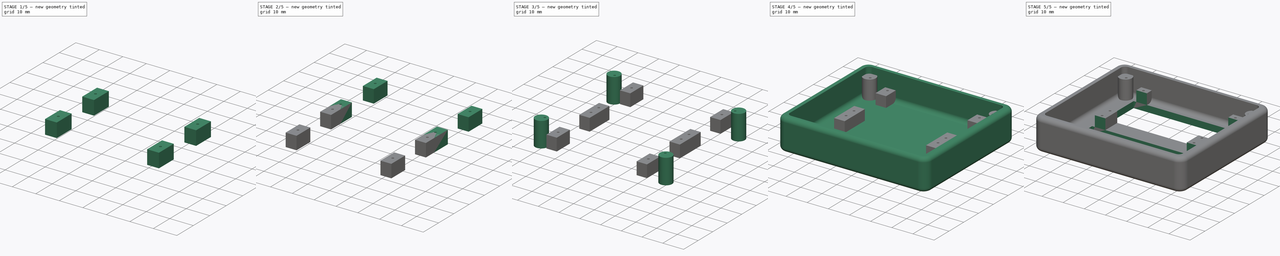
[diagram: build sequence overview — one tinted view per stage of 5, left to right]
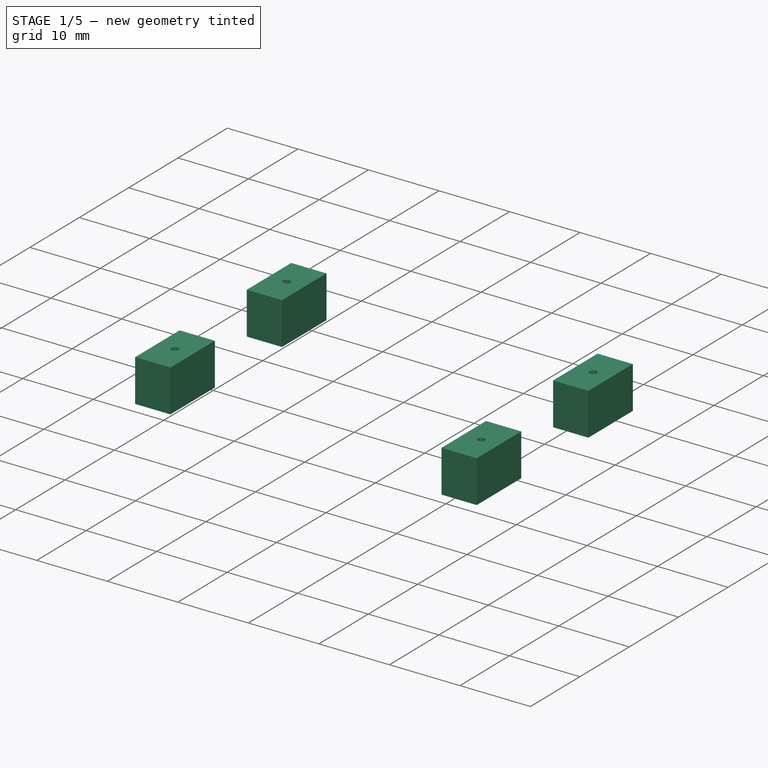
[diagram: stage 1 of 5 — iso view after this stage's code; geometry added in this stage tinted green]
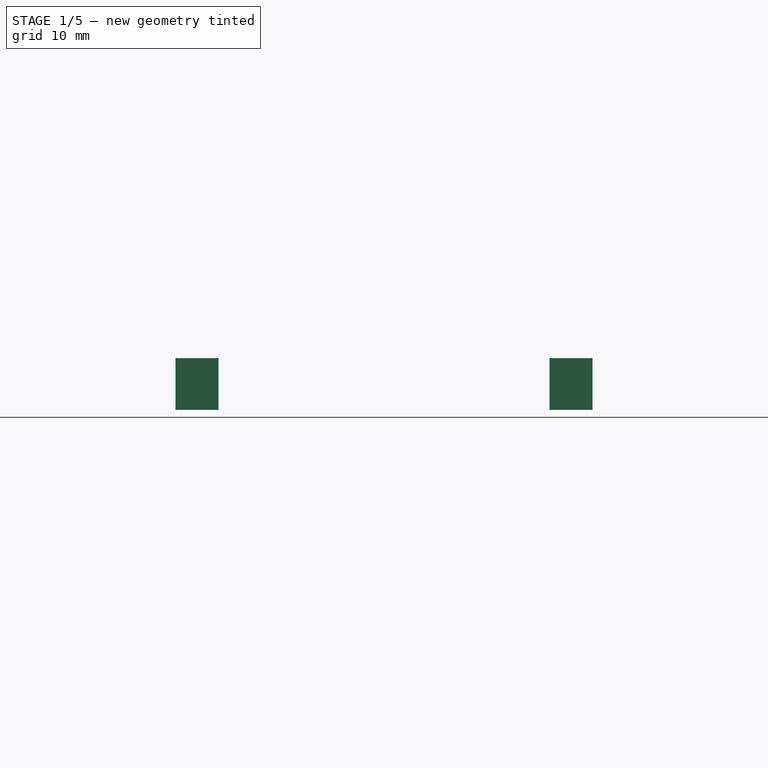
[diagram: stage 1 of 5 — front view after this stage's code; geometry added in this stage tinted green]
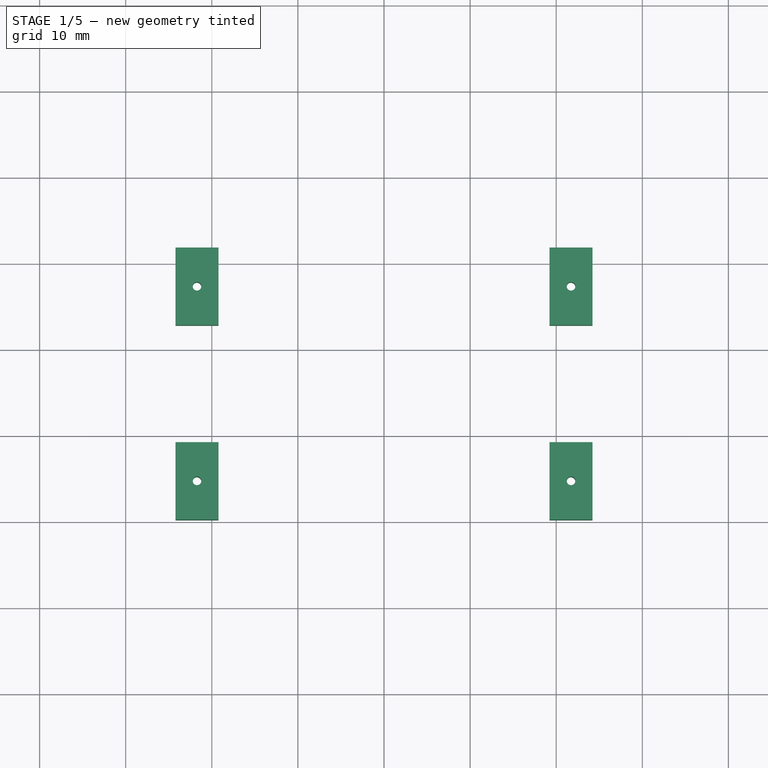
[diagram: stage 1 of 5 — top view after this stage's code; geometry added in this stage tinted green]
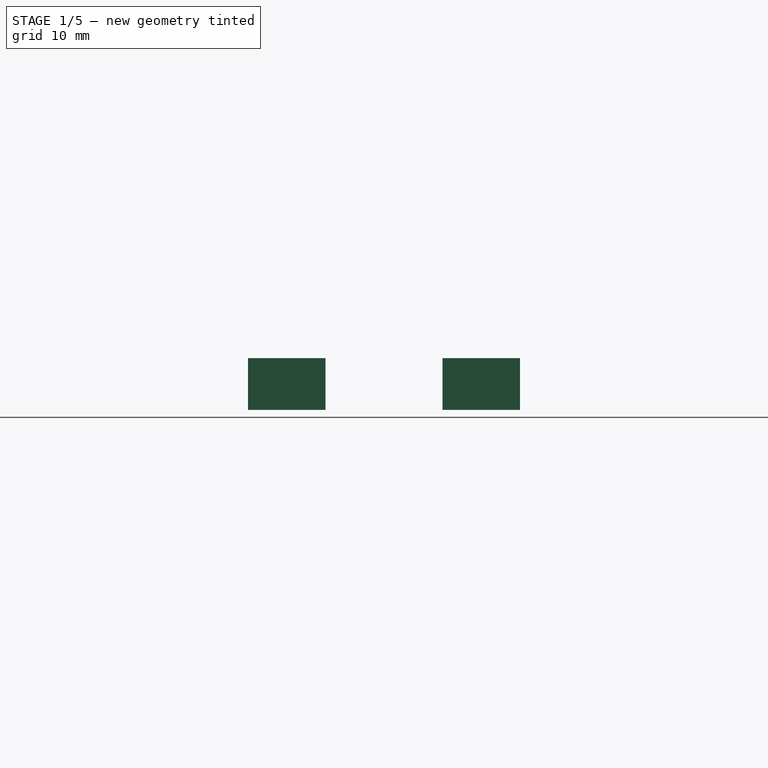
[diagram: stage 1 of 5 — right view after this stage's code; geometry added in this stage tinted green]
FCSTD DOCUMENT  (FreeCAD 0.19R24276 (Git))
Label: enclosurev3
License: All rights reserved
LicenseURL: http://en.wikipedia.org/wiki/All_rights_reserved
objects: Sketcher::SketchObject×12, PartDesign::Pad×12, PartDesign::Body×12, Part::MultiFuse×5, Part::Box×4, Part::Fillet×2, Part::Cut×2, Spreadsheet::Sheet×1
note: 61 computed .brp shape members not serialized (recipe doc carries the construction recipe); baked Part::Feature solids carry a one-line shape summary decoded from their .brp

FEATURE [Sketcher::SketchObject] Sketch015  label="LEDstandoff015"
  FullyConstrained = true
  MapMode = 5
  Support = -> [XY_Plane015]
  expr: Constraints[0] = <<data>>.hole_dia / 2
  expr: Constraints[8] = <<data>>.standoff_dia
  expr: Constraints[11] = <<data>>.case_standoff_dia * 1.5
  sketch-geometry (5):
    g0: Circle CenterX=0 CenterY=0 CenterZ=0 NormalX=0 NormalY=0 NormalZ=1 AngleXU=0 Radius=0.5
    g1: LineSegment StartX=-2.5 StartY=4.5 StartZ=0 EndX=2.5 EndY=4.5 EndZ=0
    g2: LineSegment StartX=2.5 StartY=4.5 StartZ=0 EndX=2.5 EndY=-4.5 EndZ=0
    g3: LineSegment StartX=2.5 StartY=-4.5 StartZ=0 EndX=-2.5 EndY=-4.5 EndZ=0
    g4: LineSegment StartX=-2.5 StartY=-4.5 StartZ=0 EndX=-2.5 EndY=4.5 EndZ=0
  constraints (12):
    c: Radius(g0) = 0.5
    c: Coincident(g-1,g0)
    c: Coincident(g1,g2)
    c: Coincident(g2,g3)
    c: Coincident(g3,g4)
    c: Coincident(g4,g1)
    c: Horizontal(g3)
    c: Vertical(g4)
    c: DistanceX(g3,g2) = 5
    c: Symmetric(g2,g1,g-1)
    c: Symmetric(g1,g1,g-2)
    c: DistanceY(g3,g1) = 9
FEATURE [PartDesign::Pad] Pad015
  Direction = (1,1,1)
  Length = 6
  Length2 = 100
  Profile = -> Sketch015
  Type = 0
  expr: Length = <<data>>.standoff_height
FEATURE [PartDesign::Body] Body015  label="Standoff015"
  Group = -> [Sketch015,Pad015]
  Origin = -> Origin015
  Placement = pos=(-21.72,-11.3,0) rot=(0,0,1;0rad)
  Tip = -> Pad015
FEATURE [Sketcher::SketchObject] Sketch016  label="LEDstandoff016"
  FullyConstrained = true
  MapMode = 5
  Support = -> [XY_Plane018]
  expr: Constraints[11] = <<data>>.case_standoff_dia * 1.5
  expr: Constraints[8] = <<data>>.standoff_dia
  expr: Constraints[0] = <<data>>.hole_dia / 2
  sketch-geometry (5):
    g0: Circle CenterX=0 CenterY=0 CenterZ=0 NormalX=0 NormalY=0 NormalZ=1 AngleXU=0 Radius=0.5
    g1: LineSegment StartX=-2.5 StartY=4.5 StartZ=0 EndX=2.5 EndY=4.5 EndZ=0
    g2: LineSegment StartX=2.5 StartY=4.5 StartZ=0 EndX=2.5 EndY=-4.5 EndZ=0
    g3: LineSegment StartX=2.5 StartY=-4.5 StartZ=0 EndX=-2.5 EndY=-4.5 EndZ=0
    g4: LineSegment StartX=-2.5 StartY=-4.5 StartZ=0 EndX=-2.5 EndY=4.5 EndZ=0
  constraints (12):
    c: Radius(g0) = 0.5
    c: Coincident(g-1,g0)
    c: Coincident(g1,g2)
    c: Coincident(g2,g3)
    c: Coincident(g3,g4)
    c: Coincident(g4,g1)
    c: Horizontal(g3)
    c: Vertical(g4)
    c: DistanceX(g3,g2) = 5
    c: Symmetric(g2,g1,g-1)
    c: Symmetric(g1,g1,g-2)
    c: DistanceY(g3,g1) = 9
FEATURE [Sketcher::SketchObject] Sketch017  label="LEDstandoff017"
  FullyConstrained = true
  MapMode = 5
  Support = -> [XY_Plane016]
  expr: Constraints[11] = <<data>>.case_standoff_dia * 1.5
  expr: Constraints[8] = <<data>>.standoff_dia
  expr: Constraints[0] = <<data>>.hole_dia / 2
  sketch-geometry (5):
    g0: Circle CenterX=0 CenterY=0 CenterZ=0 NormalX=0 NormalY=0 NormalZ=1 AngleXU=0 Radius=0.5
    g1: LineSegment StartX=-2.5 StartY=4.5 StartZ=0 EndX=2.5 EndY=4.5 EndZ=0
    g2: LineSegment StartX=2.5 StartY=4.5 StartZ=0 EndX=2.5 EndY=-4.5 EndZ=0
    g3: LineSegment StartX=2.5 StartY=-4.5 StartZ=0 EndX=-2.5 EndY=-4.5 EndZ=0
    g4: LineSegment StartX=-2.5 StartY=-4.5 StartZ=0 EndX=-2.5 EndY=4.5 EndZ=0
  constraints (12):
    c: Radius(g0) = 0.5
    c: Coincident(g-1,g0)
    c: Coincident(g1,g2)
    c: Coincident(g2,g3)
    c: Coincident(g3,g4)
    c: Coincident(g4,g1)
    c: Horizontal(g3)
    c: Vertical(g4)
    c: DistanceX(g3,g2) = 5
    c: Symmetric(g2,g1,g-1)
    c: Symmetric(g1,g1,g-2)
    c: DistanceY(g3,g1) = 9
FEATURE [PartDesign::Pad] Pad017
  Direction = (1,1,1)
  Length = 6
  Length2 = 100
  Profile = -> Sketch017
  Type = 0
  expr: Length = <<data>>.standoff_height
FEATURE [PartDesign::Body] Body017  label="Standoff017"
  Group = -> [Sketch017,Pad017]
  Origin = -> Origin018
  Placement = pos=(21.72,-11.3,0) rot=(0,0,1;0rad)
  Tip = -> Pad017
FEATURE [PartDesign::Pad] Pad018
  Direction = (1,1,1)
  Length = 6
  Length2 = 100
  Profile = -> Sketch016
  Type = 0
  expr: Length = <<data>>.standoff_height
FEATURE [PartDesign::Body] Body016  label="Standoff016"
  Group = -> [Sketch016,Pad018]
  Origin = -> Origin017
  Placement = pos=(-21.72,11.3,0) rot=(0,0,1;0rad)
  Tip = -> Pad018
FEATURE [Sketcher::SketchObject] Sketch018  label="LEDstandoff018"
  FullyConstrained = true
  MapMode = 5
  Support = -> [XY_Plane017]
  expr: Constraints[11] = <<data>>.case_standoff_dia * 1.5
  expr: Constraints[8] = <<data>>.standoff_dia
  expr: Constraints[0] = <<data>>.hole_dia / 2
  sketch-geometry (5):
    g0: Circle CenterX=0 CenterY=0 CenterZ=0 NormalX=0 NormalY=0 NormalZ=1 AngleXU=0 Radius=0.5
    g1: LineSegment StartX=-2.5 StartY=4.5 StartZ=0 EndX=2.5 EndY=4.5 EndZ=0
    g2: LineSegment StartX=2.5 StartY=4.5 StartZ=0 EndX=2.5 EndY=-4.5 EndZ=0
    g3: LineSegment StartX=2.5 StartY=-4.5 StartZ=0 EndX=-2.5 EndY=-4.5 EndZ=0
    g4: LineSegment StartX=-2.5 StartY=-4.5 StartZ=0 EndX=-2.5 EndY=4.5 EndZ=0
  constraints (12):
    c: Radius(g0) = 0.5
    c: Coincident(g-1,g0)
    c: Coincident(g1,g2)
    c: Coincident(g2,g3)
    c: Coincident(g3,g4)
    c: Coincident(g4,g1)
    c: Horizontal(g3)
    c: Vertical(g4)
    c: DistanceX(g3,g2) = 5
    c: Symmetric(g2,g1,g-1)
    c: Symmetric(g1,g1,g-2)
    c: DistanceY(g3,g1) = 9
FEATURE [PartDesign::Pad] Pad016
  Direction = (1,1,1)
  Length = 6
  Length2 = 100
  Profile = -> Sketch018
  Type = 0
  expr: Length = <<data>>.standoff_height
FEATURE [PartDesign::Body] Body018  label="Standoff018"
  Group = -> [Sketch018,Pad016]
  Origin = -> Origin016
  Placement = pos=(21.72,11.3,0) rot=(0,0,1;0rad)
  Tip = -> Pad016
FEATURE [Part::MultiFuse] Fusion006  label="StandoffLower"
  Placement = pos=(0,-13.97,2) rot=(0,0,1;0rad)
  Shapes = -> [Body015,Body017,Body016,Body018]
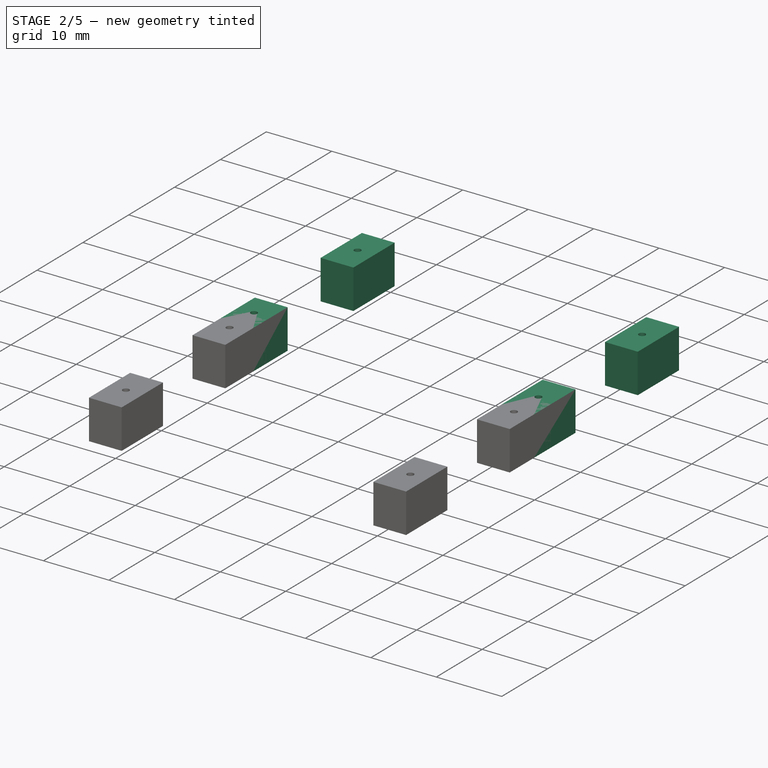
[diagram: stage 2 of 5 — iso view after this stage's code; geometry added in this stage tinted green]
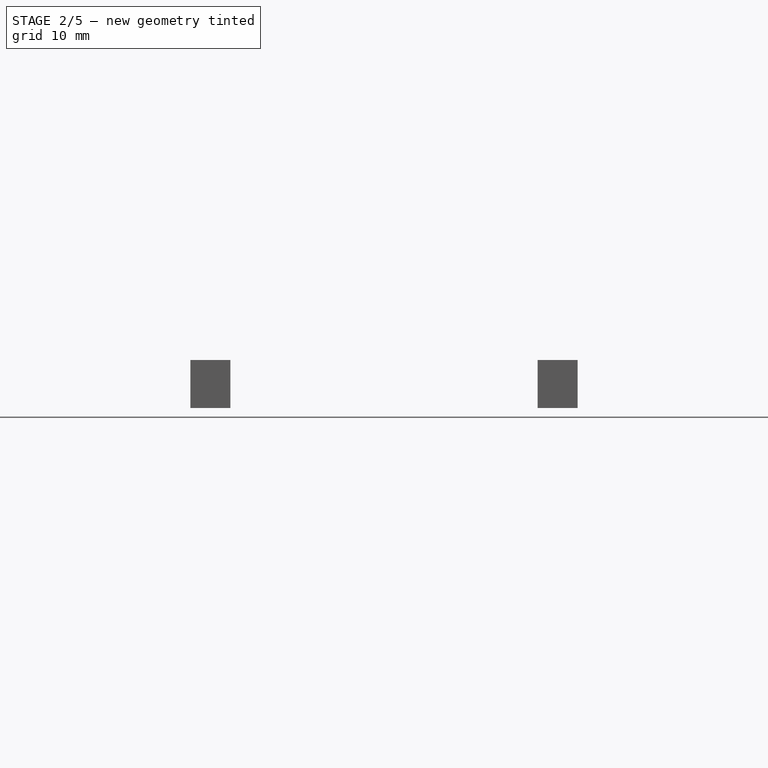
[diagram: stage 2 of 5 — front view after this stage's code; geometry added in this stage tinted green]
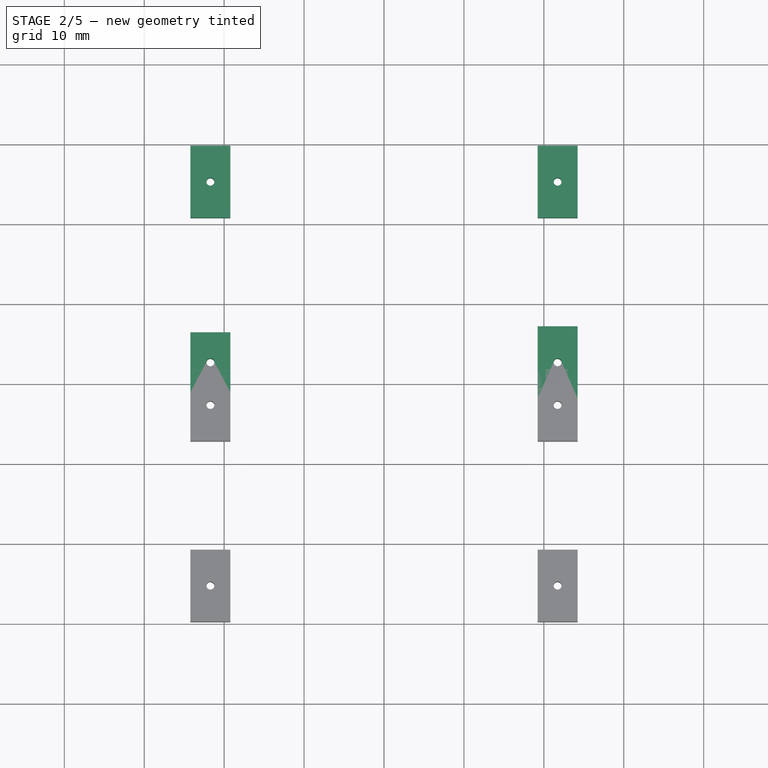
[diagram: stage 2 of 5 — top view after this stage's code; geometry added in this stage tinted green]
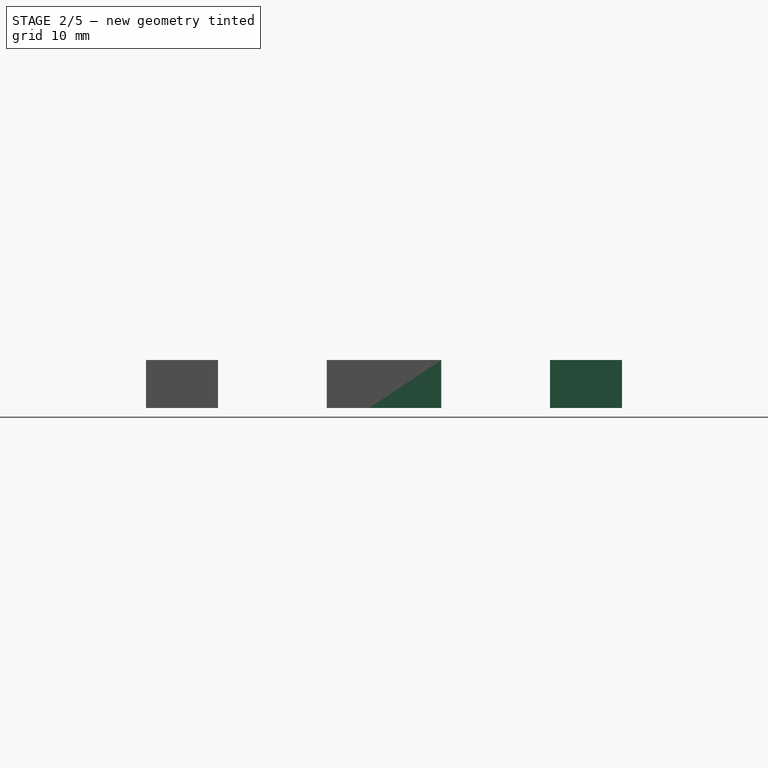
[diagram: stage 2 of 5 — right view after this stage's code; geometry added in this stage tinted green]
FEATURE [Sketcher::SketchObject] Sketch  label="LEDstandoff"
  FullyConstrained = true
  MapMode = 5
  Support = -> [XY_Plane]
  expr: Constraints[11] = <<data>>.case_standoff_dia * 1.25
  expr: Constraints[8] = <<data>>.standoff_dia
  expr: Constraints[0] = <<data>>.hole_dia / 2
  sketch-geometry (5):
    g0: Circle CenterX=0 CenterY=0 CenterZ=0 NormalX=0 NormalY=0 NormalZ=1 AngleXU=0 Radius=0.5
    g1: LineSegment StartX=-2.5 StartY=3.75 StartZ=0 EndX=2.5 EndY=3.75 EndZ=0
    g2: LineSegment StartX=2.5 StartY=3.75 StartZ=0 EndX=2.5 EndY=-3.75 EndZ=0
    g3: LineSegment StartX=2.5 StartY=-3.75 StartZ=0 EndX=-2.5 EndY=-3.75 EndZ=0
    g4: LineSegment StartX=-2.5 StartY=-3.75 StartZ=0 EndX=-2.5 EndY=3.75 EndZ=0
  constraints (12):
    c: Radius(g0) = 0.5
    c: Coincident(g-1,g0)
    c: Coincident(g1,g2)
    c: Coincident(g2,g3)
    c: Coincident(g3,g4)
    c: Coincident(g4,g1)
    c: Horizontal(g3)
    c: Vertical(g4)
    c: DistanceX(g3,g2) = 5
    c: Symmetric(g2,g1,g-1)
    c: Symmetric(g1,g1,g-2)
    c: DistanceY(g3,g1) = 7.5
FEATURE [Spreadsheet::Sheet] Spreadsheet  label="data"
  cells = A4=hole_dia; B4(hole_dia)==1mm; A5=standoff_dia; B5(standoff_dia)==5mm; A6=standoff_height; B6(standoff_height)==6mm; A7=case_standoff_dia; B7(case_standoff_dia)==6mm; A8=wall_thickness; B8(wall_thickness)==3mm; A9=case_thickness; B9(case_thickness)==15mm; A10=case_inner_width; B10(case_inner_width)==2.55in; A11=case_inner_height; B11(case_inner_height)==2.15in; A12=offset; B12(offset)==1mm
FEATURE [PartDesign::Pad] Pad
  Direction = (1,1,1)
  Length = 6
  Length2 = 100
  Profile = -> Sketch
  Type = 0
  expr: Length = <<data>>.standoff_height
FEATURE [Sketcher::SketchObject] Sketch012  label="LEDstandoff012"
  FullyConstrained = true
  MapMode = 5
  Support = -> [XY_Plane012]
  expr: Constraints[0] = <<data>>.hole_dia / 2
  expr: Constraints[8] = <<data>>.standoff_dia
  expr: Constraints[11] = <<data>>.case_standoff_dia * 1.5
  sketch-geometry (5):
    g0: Circle CenterX=0 CenterY=0 CenterZ=0 NormalX=0 NormalY=0 NormalZ=1 AngleXU=0 Radius=0.5
    g1: LineSegment StartX=-2.5 StartY=4.5 StartZ=0 EndX=2.5 EndY=4.5 EndZ=0
    g2: LineSegment StartX=2.5 StartY=4.5 StartZ=0 EndX=2.5 EndY=-4.5 EndZ=0
    g3: LineSegment StartX=2.5 StartY=-4.5 StartZ=0 EndX=-2.5 EndY=-4.5 EndZ=0
    g4: LineSegment StartX=-2.5 StartY=-4.5 StartZ=0 EndX=-2.5 EndY=4.5 EndZ=0
  constraints (12):
    c: Radius(g0) = 0.5
    c: Coincident(g-1,g0)
    c: Coincident(g1,g2)
    c: Coincident(g2,g3)
    c: Coincident(g3,g4)
    c: Coincident(g4,g1)
    c: Horizontal(g3)
    c: Vertical(g4)
    c: DistanceX(g3,g2) = 5
    c: Symmetric(g2,g1,g-1)
    c: Symmetric(g1,g1,g-2)
    c: DistanceY(g3,g1) = 9
FEATURE [PartDesign::Pad] Pad012
  Direction = (1,1,1)
  Length = 6
  Length2 = 100
  Profile = -> Sketch012
  Type = 0
  expr: Length = <<data>>.standoff_height
FEATURE [PartDesign::Body] Body012  label="Standoff012"
  Group = -> [Sketch012,Pad012]
  Origin = -> Origin012
  Placement = pos=(21.72,-11.3,0) rot=(0,0,1;0rad)
  Tip = -> Pad012
FEATURE [Sketcher::SketchObject] Sketch013  label="LEDstandoff013"
  FullyConstrained = true
  MapMode = 5
  Support = -> [XY_Plane013]
  expr: Constraints[0] = <<data>>.hole_dia / 2
  expr: Constraints[8] = <<data>>.standoff_dia
  expr: Constraints[11] = <<data>>.case_standoff_dia * 1.5
  sketch-geometry (5):
    g0: Circle CenterX=0 CenterY=0 CenterZ=0 NormalX=0 NormalY=0 NormalZ=1 AngleXU=0 Radius=0.5
    g1: LineSegment StartX=-2.5 StartY=4.5 StartZ=0 EndX=2.5 EndY=4.5 EndZ=0
    g2: LineSegment StartX=2.5 StartY=4.5 StartZ=0 EndX=2.5 EndY=-4.5 EndZ=0
    g3: LineSegment StartX=2.5 StartY=-4.5 StartZ=0 EndX=-2.5 EndY=-4.5 EndZ=0
    g4: LineSegment StartX=-2.5 StartY=-4.5 StartZ=0 EndX=-2.5 EndY=4.5 EndZ=0
  constraints (12):
    c: Radius(g0) = 0.5
    c: Coincident(g-1,g0)
    c: Coincident(g1,g2)
    c: Coincident(g2,g3)
    c: Coincident(g3,g4)
    c: Coincident(g4,g1)
    c: Horizontal(g3)
    c: Vertical(g4)
    c: DistanceX(g3,g2) = 5
    c: Symmetric(g2,g1,g-1)
    c: Symmetric(g1,g1,g-2)
    c: DistanceY(g3,g1) = 9
FEATURE [PartDesign::Pad] Pad013
  Direction = (1,1,1)
  Length = 6
  Length2 = 100
  Profile = -> Sketch013
  Type = 0
  expr: Length = <<data>>.standoff_height
FEATURE [PartDesign::Body] Body013  label="Standoff013"
  Group = -> [Sketch013,Pad013]
  Origin = -> Origin013
  Placement = pos=(-21.72,11.3,0) rot=(0,0,1;0rad)
  Tip = -> Pad013
FEATURE [Sketcher::SketchObject] Sketch014  label="LEDstandoff014"
  FullyConstrained = true
  MapMode = 5
  Support = -> [XY_Plane014]
  expr: Constraints[0] = <<data>>.hole_dia / 2
  expr: Constraints[8] = <<data>>.standoff_dia
  expr: Constraints[11] = <<data>>.case_standoff_dia * 1.5
  sketch-geometry (5):
    g0: Circle CenterX=0 CenterY=0 CenterZ=0 NormalX=0 NormalY=0 NormalZ=1 AngleXU=0 Radius=0.5
    g1: LineSegment StartX=-2.5 StartY=4.5 StartZ=0 EndX=2.5 EndY=4.5 EndZ=0
    g2: LineSegment StartX=2.5 StartY=4.5 StartZ=0 EndX=2.5 EndY=-4.5 EndZ=0
    g3: LineSegment StartX=2.5 StartY=-4.5 StartZ=0 EndX=-2.5 EndY=-4.5 EndZ=0
    g4: LineSegment StartX=-2.5 StartY=-4.5 StartZ=0 EndX=-2.5 EndY=4.5 EndZ=0
  constraints (12):
    c: Radius(g0) = 0.5
    c: Coincident(g-1,g0)
    c: Coincident(g1,g2)
    c: Coincident(g2,g3)
    c: Coincident(g3,g4)
    c: Coincident(g4,g1)
    c: Horizontal(g3)
    c: Vertical(g4)
    c: DistanceX(g3,g2) = 5
    c: Symmetric(g2,g1,g-1)
    c: Symmetric(g1,g1,g-2)
    c: DistanceY(g3,g1) = 9
FEATURE [PartDesign::Pad] Pad014
  Direction = (1,1,1)
  Length = 6
  Length2 = 100
  Profile = -> Sketch014
  Type = 0
  expr: Length = <<data>>.standoff_height
FEATURE [PartDesign::Body] Body014  label="Standoff014"
  Group = -> [Sketch014,Pad014]
  Origin = -> Origin014
  Placement = pos=(21.72,11.3,0) rot=(0,0,1;0rad)
  Tip = -> Pad014
FEATURE [Part::MultiFuse] Fusion  label="StandoffUpper"
  Placement = pos=(0,13.97,2) rot=(0,0,1;0rad)
  Shapes = -> [Body,Body012,Body013,Body014]
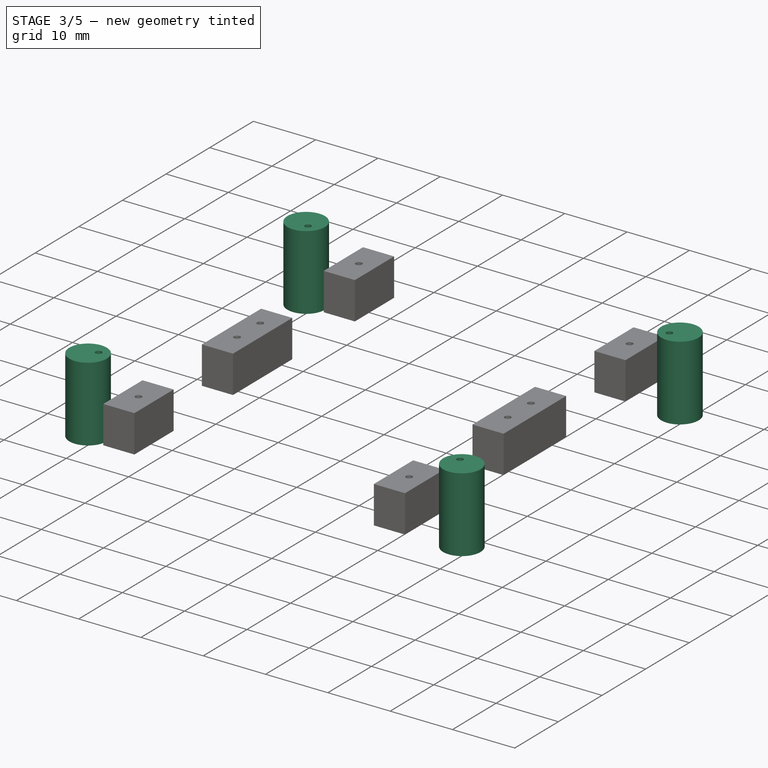
[diagram: stage 3 of 5 — iso view after this stage's code; geometry added in this stage tinted green]
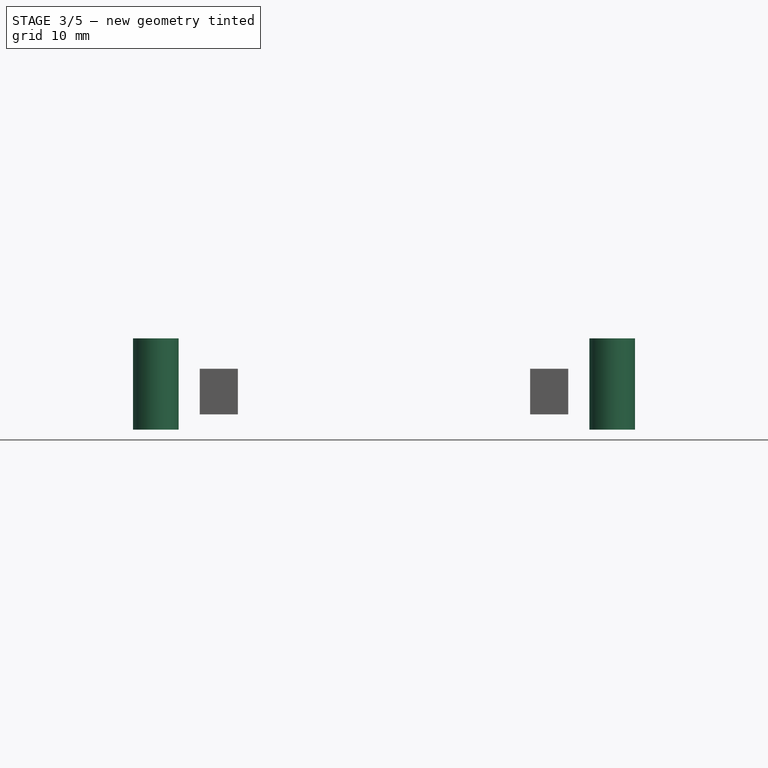
[diagram: stage 3 of 5 — front view after this stage's code; geometry added in this stage tinted green]
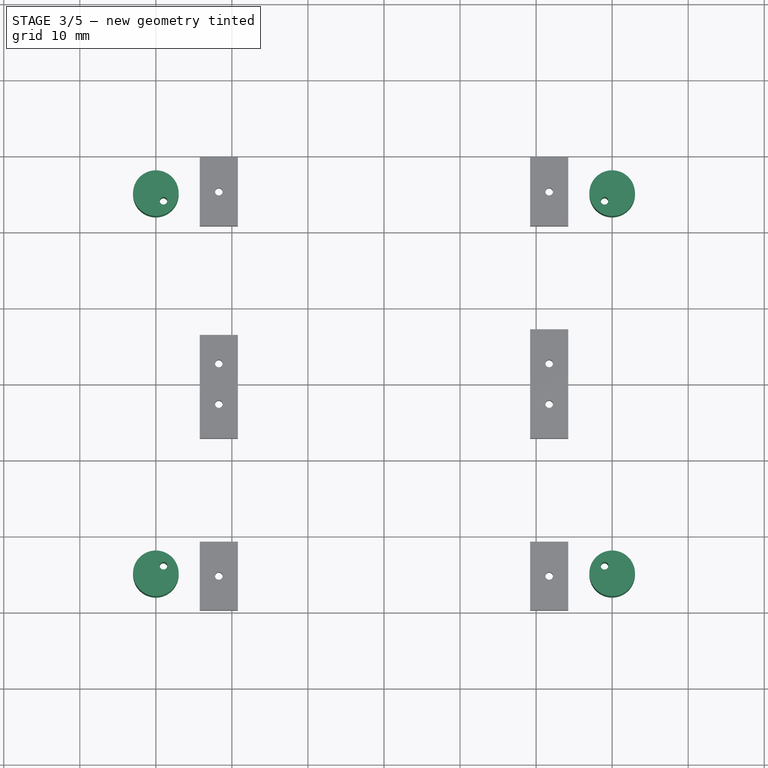
[diagram: stage 3 of 5 — top view after this stage's code; geometry added in this stage tinted green]
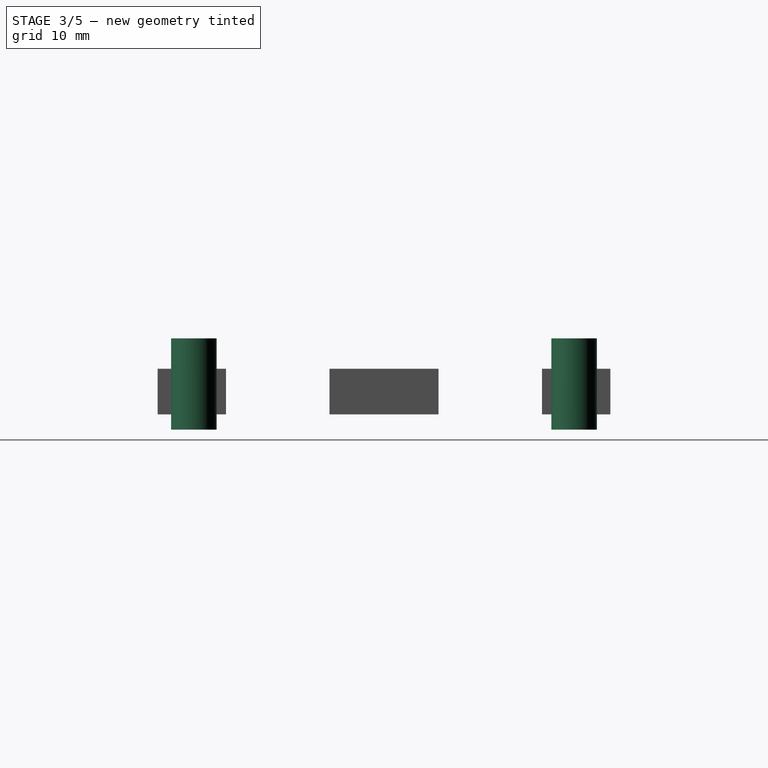
[diagram: stage 3 of 5 — right view after this stage's code; geometry added in this stage tinted green]
FEATURE [Sketcher::SketchObject] Sketch008  label="LEDstandoff008"
  FullyConstrained = true
  MapMode = 5
  Support = -> [XY_Plane008]
  expr: Constraints[4] = <<data>>.offset
  expr: Constraints[3] = <<data>>.offset
  expr: Constraints[0] = <<data>>.hole_dia / 2
  expr: Constraints[1] = <<data>>.case_standoff_dia / 2
  sketch-geometry (2):
    g0: Circle CenterX=1 CenterY=1 CenterZ=0 NormalX=0 NormalY=0 NormalZ=1 AngleXU=0 Radius=0.5
    g1: Circle CenterX=0 CenterY=0 CenterZ=0 NormalX=0 NormalY=0 NormalZ=1 AngleXU=0 Radius=3
  constraints (5):
    c: Radius(g0) = 0.5
    c: Radius(g1) = 3
    c: Coincident(g-1,g1)
    c: DistanceX(g1,g0) = 1
    c: DistanceY(g1,g0) = 1
FEATURE [PartDesign::Pad] Pad008
  Direction = (1,1,1)
  Length = 12
  Length2 = 100
  Profile = -> Sketch008
  Type = 0
  expr: Length = <<data>>.case_thickness - <<data>>.wall_thickness
FEATURE [Sketcher::SketchObject] Sketch009  label="LEDstandoff009"
  FullyConstrained = true
  MapMode = 5
  Support = -> [XY_Plane009]
  expr: Constraints[4] = <<data>>.offset
  expr: Constraints[3] = <<data>>.offset
  expr: Constraints[1] = <<data>>.case_standoff_dia / 2
  expr: Constraints[0] = <<data>>.hole_dia / 2
  sketch-geometry (2):
    g0: Circle CenterX=-1 CenterY=1 CenterZ=0 NormalX=0 NormalY=0 NormalZ=1 AngleXU=0 Radius=0.5
    g1: Circle CenterX=0 CenterY=0 CenterZ=0 NormalX=0 NormalY=0 NormalZ=1 AngleXU=0 Radius=3
  constraints (5):
    c: Radius(g0) = 0.5
    c: Radius(g1) = 3
    c: Coincident(g1,g-1)
    c: DistanceY(g1,g0) = 1
    c: DistanceX(g0,g1) = 1
FEATURE [PartDesign::Pad] Pad009
  Direction = (1,1,1)
  Length = 12
  Length2 = 100
  Profile = -> Sketch009
  Type = 0
  expr: Length = <<data>>.case_thickness - <<data>>.wall_thickness
FEATURE [PartDesign::Body] Body009  label="Standoff009"
  Group = -> [Sketch009,Pad009]
  Origin = -> Origin009
  Placement = pos=(30,-25,0) rot=(0,0,1;0rad)
  Tip = -> Pad009
FEATURE [Sketcher::SketchObject] Sketch010  label="LEDstandoff010"
  FullyConstrained = true
  MapMode = 5
  Support = -> [XY_Plane010]
  expr: Constraints[4] = <<data>>.offset
  expr: Constraints[3] = <<data>>.offset
  expr: Constraints[1] = <<data>>.case_standoff_dia / 2
  expr: Constraints[0] = <<data>>.hole_dia / 2
  sketch-geometry (2):
    g0: Circle CenterX=1 CenterY=-1 CenterZ=0 NormalX=0 NormalY=0 NormalZ=1 AngleXU=0 Radius=0.5
    g1: Circle CenterX=0 CenterY=0 CenterZ=0 NormalX=0 NormalY=0 NormalZ=1 AngleXU=0 Radius=3
  constraints (5):
    c: Radius(g0) = 0.5
    c: Radius(g1) = 3
    c: Coincident(g1,g-1)
    c: DistanceY(g0,g1) = 1
    c: DistanceX(g1,g0) = 1
FEATURE [PartDesign::Pad] Pad010
  Direction = (1,1,1)
  Length = 12
  Length2 = 100
  Profile = -> Sketch010
  Type = 0
  expr: Length = <<data>>.case_thickness - <<data>>.wall_thickness
FEATURE [PartDesign::Body] Body010  label="Standoff010"
  Group = -> [Sketch010,Pad010]
  Origin = -> Origin010
  Placement = pos=(-30,25,0) rot=(0,0,1;0rad)
  Tip = -> Pad010
FEATURE [Sketcher::SketchObject] Sketch011  label="LEDstandoff011"
  FullyConstrained = true
  MapMode = 5
  Support = -> [XY_Plane011]
  expr: Constraints[4] = <<data>>.offset
  expr: Constraints[3] = <<data>>.offset
  expr: Constraints[1] = <<data>>.case_standoff_dia / 2
  expr: Constraints[0] = <<data>>.hole_dia / 2
  sketch-geometry (2):
    g0: Circle CenterX=1 CenterY=1 CenterZ=0 NormalX=0 NormalY=0 NormalZ=1 AngleXU=0 Radius=0.5
    g1: Circle CenterX=0 CenterY=0 CenterZ=0 NormalX=0 NormalY=0 NormalZ=1 AngleXU=0 Radius=3
  constraints (5):
    c: Radius(g0) = 0.5
    c: Radius(g1) = 3
    c: Coincident(g-1,g1)
    c: DistanceX(g1,g0) = 1
    c: DistanceY(g0) = 1
FEATURE [PartDesign::Pad] Pad011
  Direction = (1,1,1)
  Length = 12
  Length2 = 100
  Profile = -> Sketch011
  Type = 0
  expr: Length = <<data>>.case_thickness - <<data>>.wall_thickness
FEATURE [PartDesign::Body] Body011  label="Standoff011"
  Group = -> [Sketch011,Pad011]
  Origin = -> Origin011
  Placement = pos=(30,25,0) rot=(0,0,1;3.14159rad)
  Tip = -> Pad011
FEATURE [Part::MultiFuse] Fusion005  label="CoverStandoffs"
  Shapes = -> [Body011,Body010,Body009,Body008]
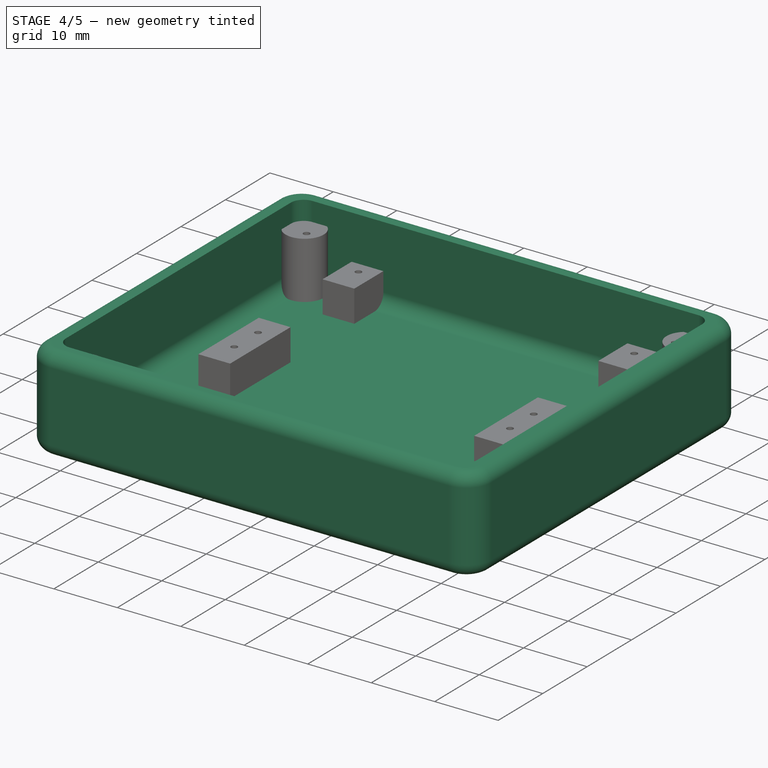
[diagram: stage 4 of 5 — iso view after this stage's code; geometry added in this stage tinted green]
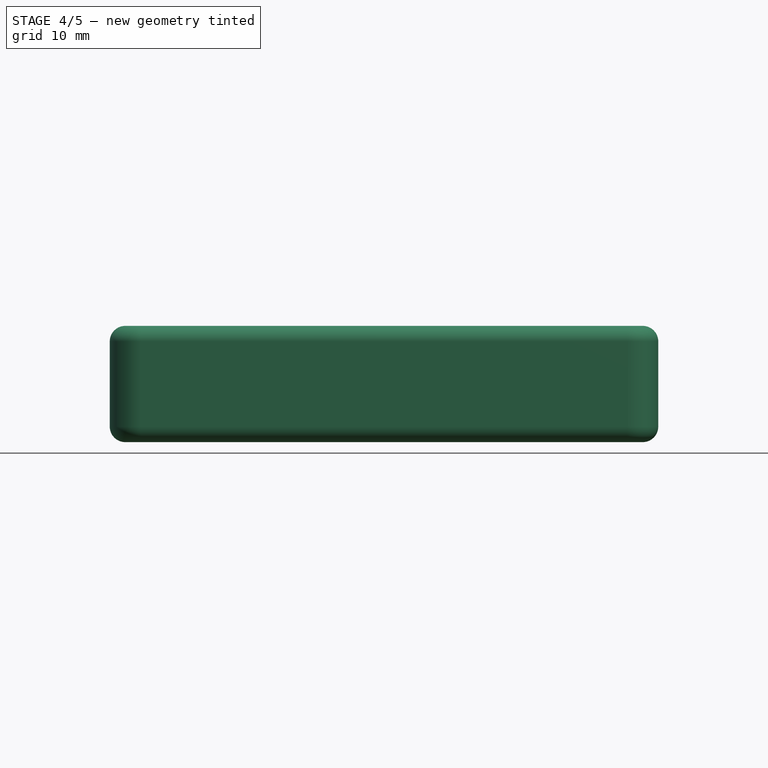
[diagram: stage 4 of 5 — front view after this stage's code; geometry added in this stage tinted green]
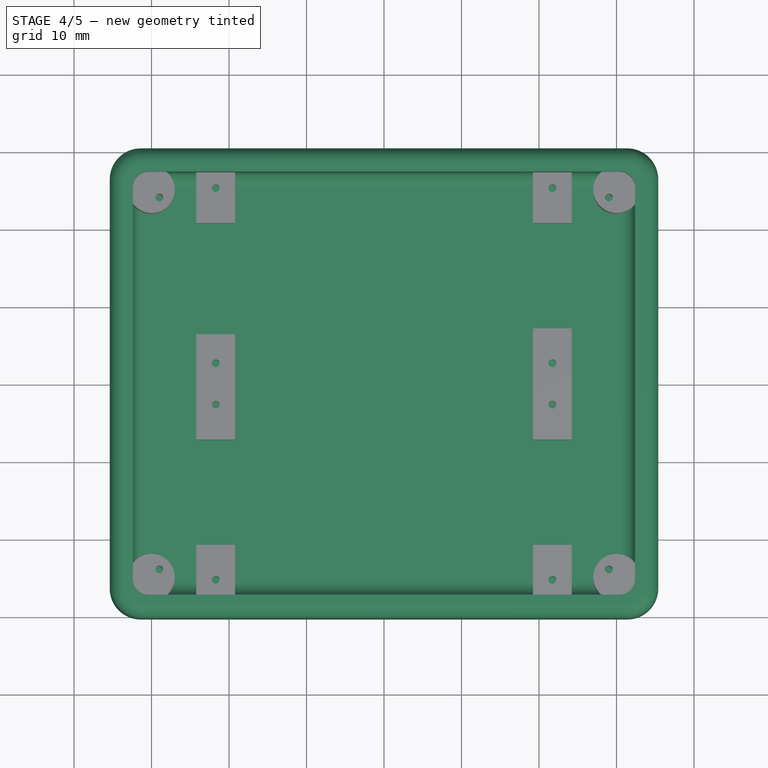
[diagram: stage 4 of 5 — top view after this stage's code; geometry added in this stage tinted green]
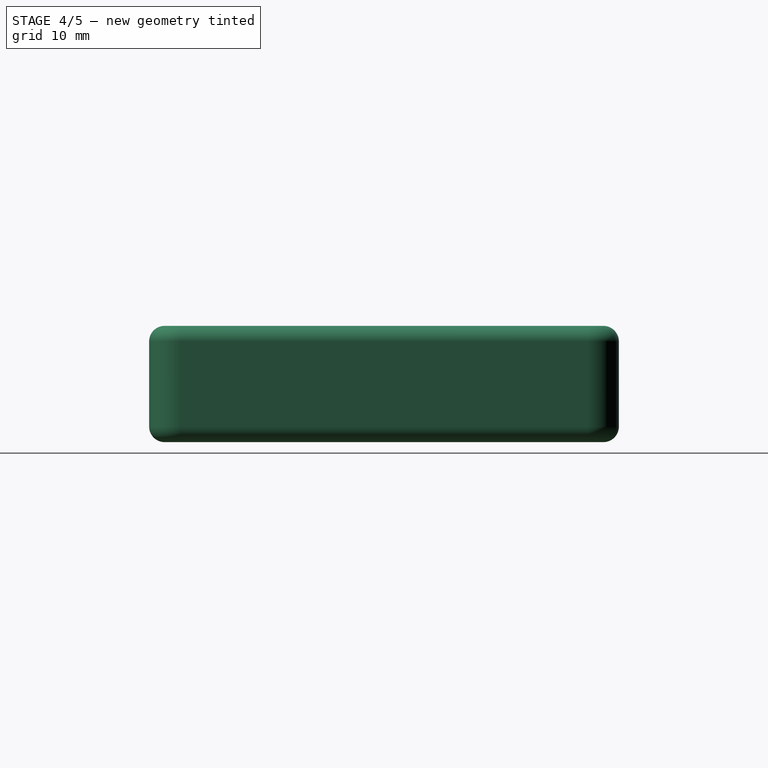
[diagram: stage 4 of 5 — right view after this stage's code; geometry added in this stage tinted green]
FEATURE [PartDesign::Body] Body  label="Standoff"
  Group = -> [Sketch,Pad]
  Origin = -> Origin
  Placement = pos=(-21.72,-11.3,0) rot=(0,0,1;0rad)
  Tip = -> Pad
FEATURE [Part::Box] Box  label="Cube"
  AttacherType = Attacher::AttachEngine3D
  Height = 15
  Length = 64.77
  Placement = pos=(-32.385,-27.305,3) rot=(0,0,1;0rad)
  Width = 54.61
  expr: .Placement.Base.z = <<data>>.wall_thickness
  expr: Height = <<data>>.case_thickness
  expr: .Placement.Base.x = -<<data>>.case_inner_width / 2
  expr: .Placement.Base.y = -<<data>>.case_inner_height / 2
  expr: Width = <<data>>.case_inner_height
  expr: Length = <<data>>.case_inner_width
FEATURE [Part::Fillet] Fillet
  Base = -> Box
  Edges = 8 edges r=2: [Edge1,Edge3,Edge4,Edge5,Edge7,Edge8,Edge9,Edge11]
FEATURE [Part::Box] Box001  label="Cube001"
  AttacherType = Attacher::AttachEngine3D
  Height = 15
  Length = 70.77
  Placement = pos=(-35.385,-30.305,0) rot=(0,0,1;0rad)
  Width = 60.61
  expr: Length = <<data>>.case_inner_width + <<data>>.wall_thickness * 2
  expr: Width = <<data>>.case_inner_height + <<data>>.wall_thickness * 2
  expr: .Placement.Base.y = -<<data>>.case_inner_height / 2 - <<data>>.wall_thickness
  expr: .Placement.Base.x = -<<data>>.case_inner_width / 2 - <<data>>.wall_thickness
  expr: Height = <<data>>.case_thickness
FEATURE [Part::Fillet] Fillet001
  Base = -> Box001
  Edges = 12 edges: [Edge1 r=4,Edge2 r=2,Edge3 r=4,Edge4 r=2,Edge5 r=4,Edge6 r=2,Edge7 r=4,Edge8 r=2,Edge9 r=2,Edge10 r=2,Edge11 r=2,Edge12 r=2]
FEATURE [Part::Cut] Cut  label="Body"
  Base = -> Fillet001
  Tool = -> Fillet
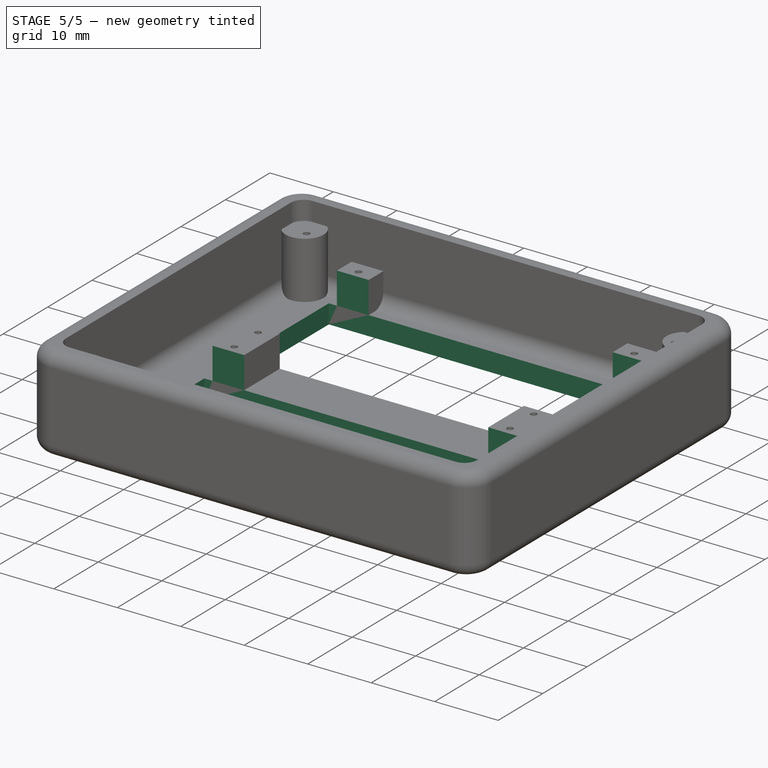
[diagram: stage 5 of 5 — iso view after this stage's code; geometry added in this stage tinted green]
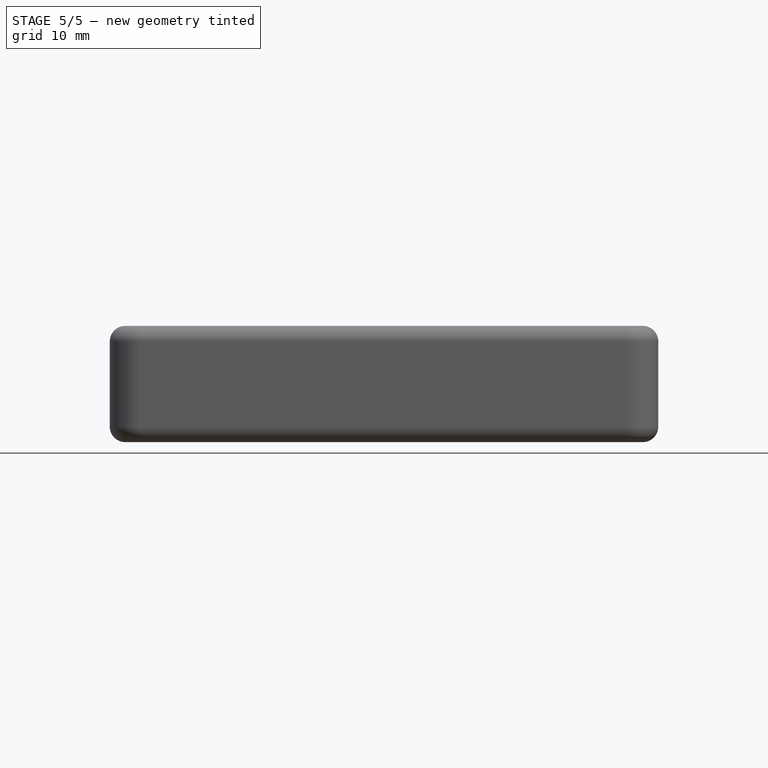
[diagram: stage 5 of 5 — front view after this stage's code; geometry added in this stage tinted green]
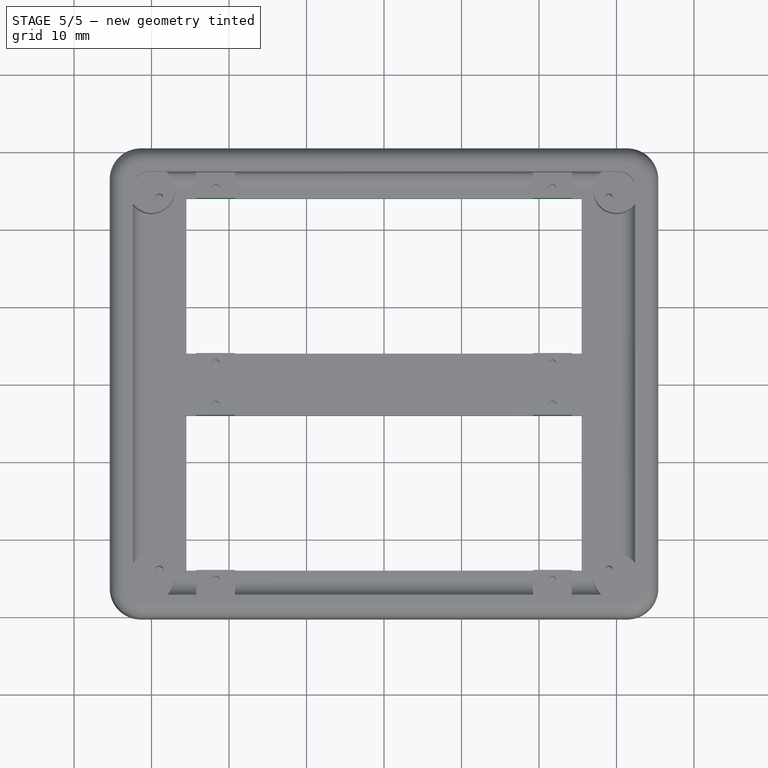
[diagram: stage 5 of 5 — top view after this stage's code; geometry added in this stage tinted green]
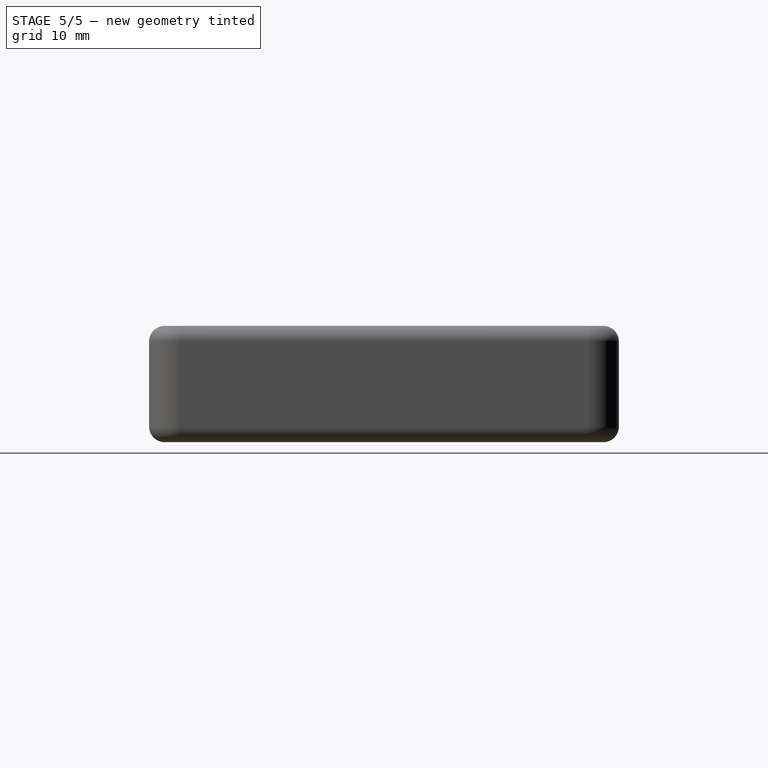
[diagram: stage 5 of 5 — right view after this stage's code; geometry added in this stage tinted green]
FEATURE [PartDesign::Body] Body008  label="Standoff008"
  Group = -> [Sketch008,Pad008]
  Origin = -> Origin008
  Placement = pos=(-30,-25,0) rot=(0,0,1;0rad)
  Tip = -> Pad008
FEATURE [Part::Box] Box002  label="DisplayCutoutUpper"
  AttacherType = Attacher::AttachEngine3D
  Height = 10
  Length = 51
  Placement = pos=(-25.5,4,0) rot=(0,0,1;0rad)
  Width = 20
  expr: .Placement.Base.x = -51mm / 2
FEATURE [Part::Box] Box003  label="DisplayCutoutLower"
  AttacherType = Attacher::AttachEngine3D
  Height = 10
  Length = 51
  Placement = pos=(-25.5,-24,0) rot=(0,0,1;0rad)
  Width = 20
  expr: .Placement.Base.x = -51mm / 2
FEATURE [Part::MultiFuse] Fusion004  label="DisplayCutouts"
  Shapes = -> [Box003,Box002]
FEATURE [Part::MultiFuse] Fusion007
  Shapes = -> [Cut,Fusion005,Fusion,Fusion006]
FEATURE [Part::Cut] Cut001  label="DisplayEnclosure"
  Base = -> Fusion007
  Tool = -> Fusion004
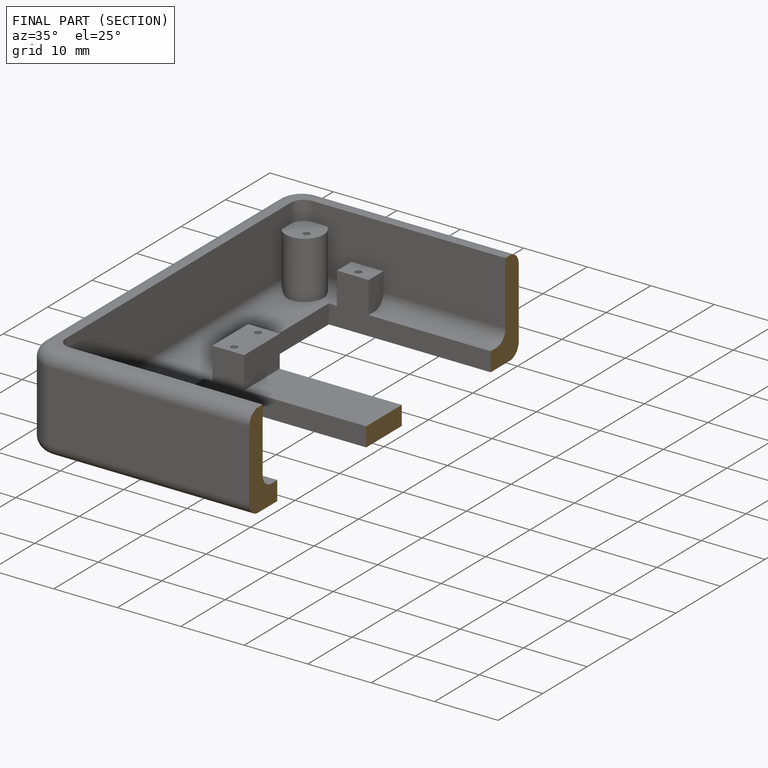
[diagram: finished part — half-section view (interior)]
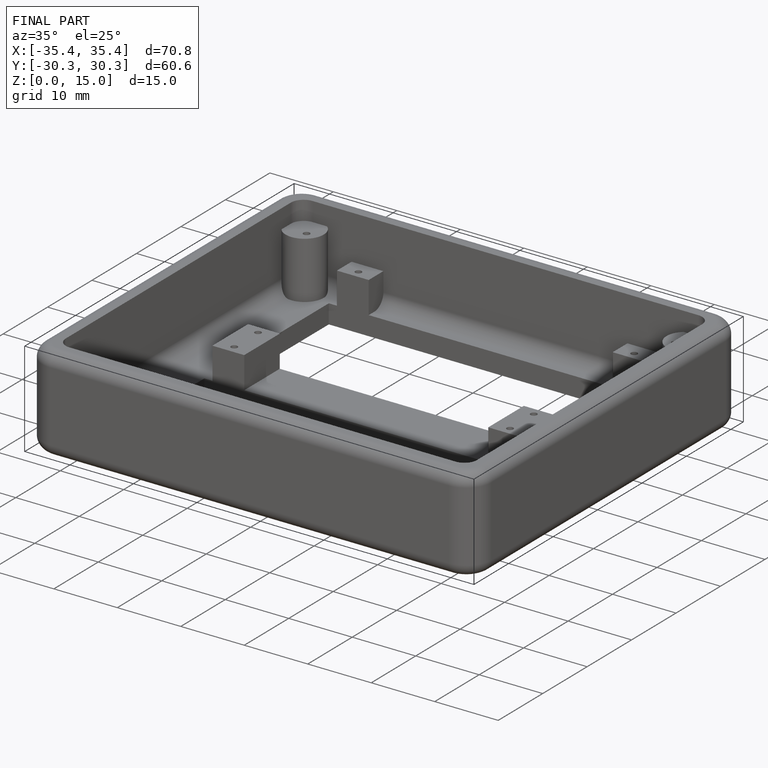
[diagram: finished part — iso view with bounding-box wireframe]
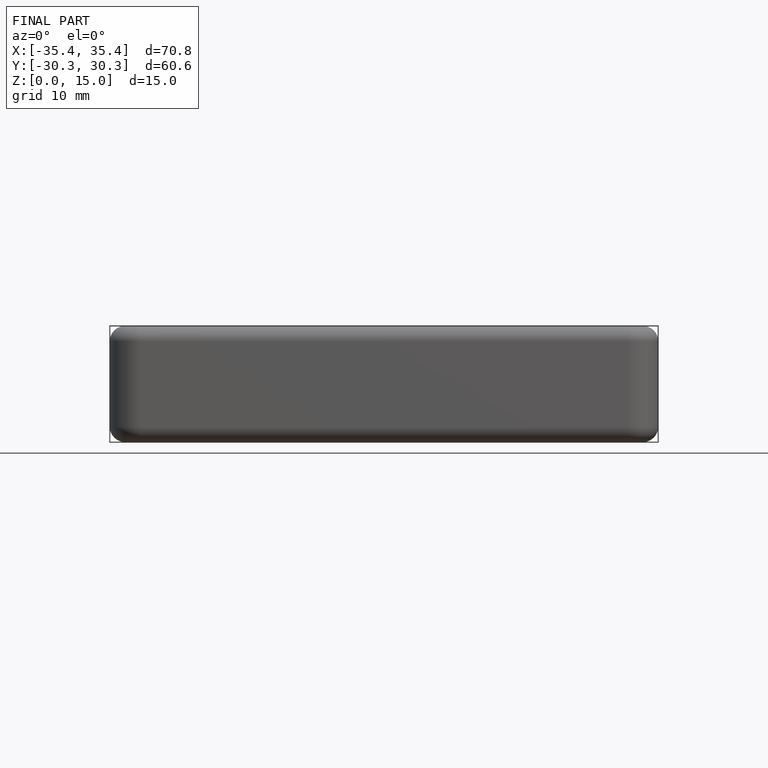
[diagram: finished part — front view with bounding-box wireframe]
